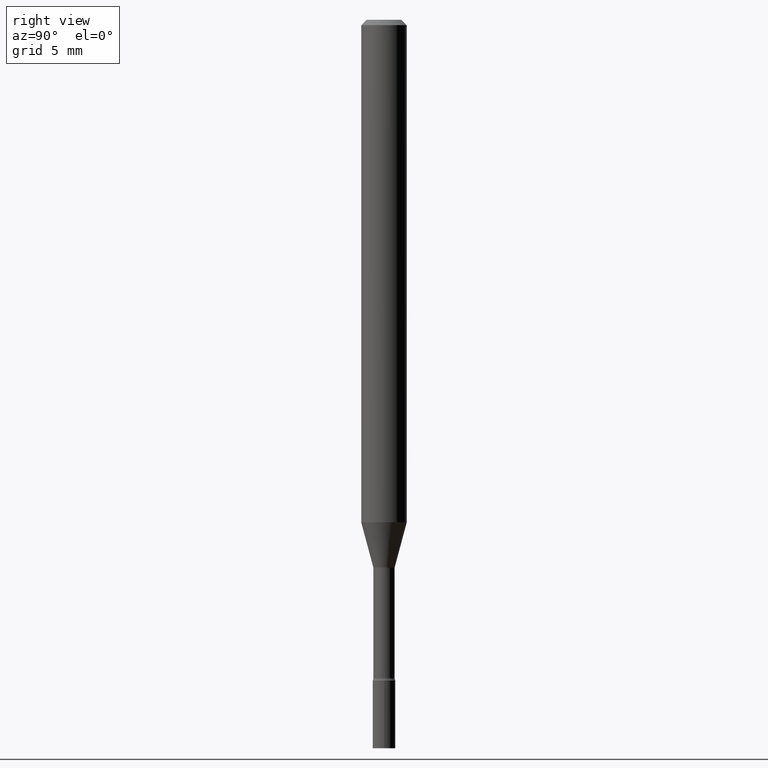
[diagram: clean part render]
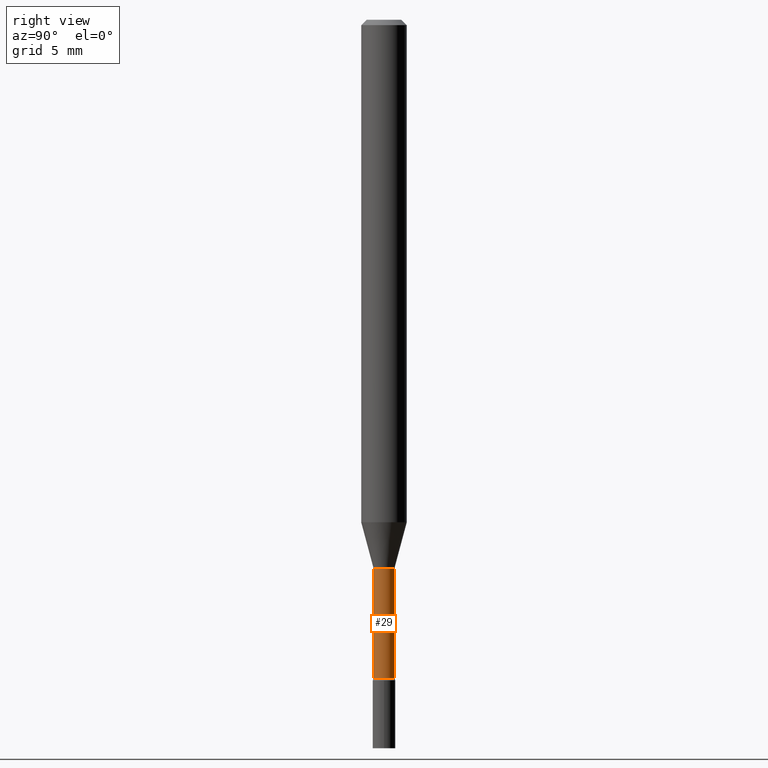
[diagram: same view with one face highlighted and labeled with its STEP entity id]
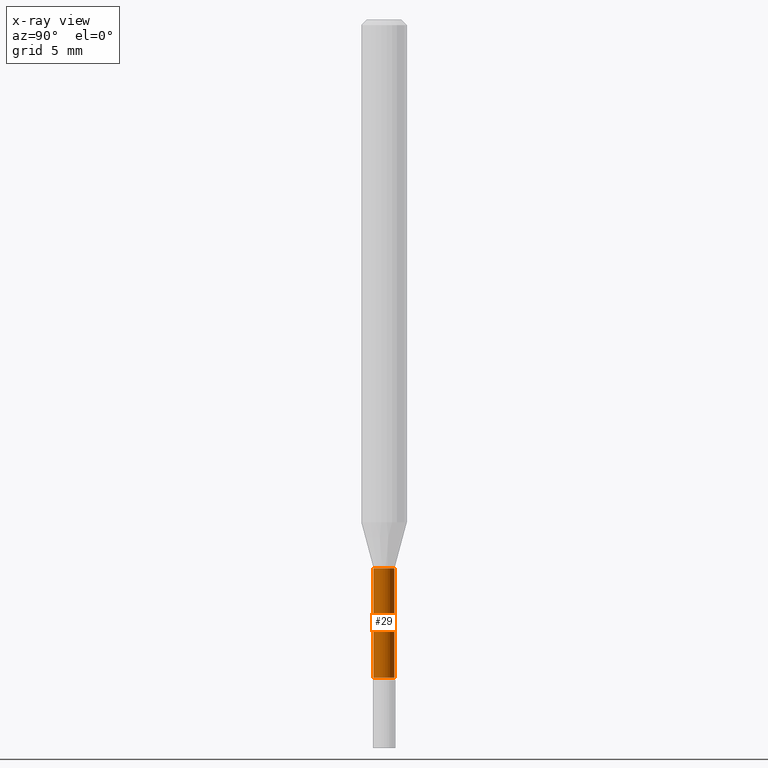
[diagram: x-ray of the same camera — body ghosted, the highlighted face saturated]
A machine part, right view. The second image highlights one B-rep face of the part: STEP entity #29.
The next image is the same camera in x-ray: the body ghosted, the highlighted face saturated — about 0% of this face is hidden behind the body in this view.
In plain terms, the highlighted cylindrical surface (edge-blend (fillet) strip) has radius 0.7404 mm, axis along (-0, 0, 1).
Its self-contained STEP definition (entity closure, byte-faithful):
#28 = VERTEX_POINT ( 'NONE', #440 ) ;
#29 = ADVANCED_FACE ( 'NONE', ( #34 ), #480, .T. ) ;
#34 = FACE_OUTER_BOUND ( 'NONE', #65, .T. ) ;
#43 = CARTESIAN_POINT ( 'NONE',  ( -2.035533620545106341E-16, -0.02915000000000633404, -1.806783525791634704 ) ) ;
#55 = DIRECTION ( 'NONE',  ( -6.982962677686265922E-15, -1.000000000000000000, 0.000000000000000000 ) ) ;
#65 = EDGE_LOOP ( 'NONE', ( #175, #304, #112, #149 ) ) ;
#98 = EDGE_CURVE ( 'NONE', #220, #28, #283, .T. ) ;
#109 = EDGE_CURVE ( 'NONE', #390, #137, #484, .T. ) ;
#110 = CIRCLE ( 'NONE', #209, 0.02914999999999999883 ) ;
#112 = ORIENTED_EDGE ( 'NONE', *, *, #302, .F. ) ;
#118 = DIRECTION ( 'NONE',  ( -2.445488781453985936E-29, 3.491452733121231775E-15, 1.000000000000000000 ) ) ;
#127 = CARTESIAN_POINT ( 'NONE',  ( 4.418468842839320606E-29, -6.308299279283618555E-15, -1.806783525791634704 ) ) ;
#128 = CIRCLE ( 'NONE', #397, 0.02915000000000002311 ) ;
#137 = VERTEX_POINT ( 'NONE', #409 ) ;
#149 = ORIENTED_EDGE ( 'NONE', *, *, #98, .F. ) ;
#175 = ORIENTED_EDGE ( 'NONE', *, *, #269, .T. ) ;
#201 = VECTOR ( 'NONE', #490, 39.37007874015748143 ) ;
#209 = AXIS2_PLACEMENT_3D ( 'NONE', #251, #501, #55 ) ;
#220 = VERTEX_POINT ( 'NONE', #43 ) ;
#227 = VECTOR ( 'NONE', #370, 39.37007874015748143 ) ;
#233 = DIRECTION ( 'NONE',  ( -6.982962677686266711E-15, -1.000000000000000000, 0.000000000000000000 ) ) ;
#251 = CARTESIAN_POINT ( 'NONE',  ( 3.682844447895300553E-29, -5.258039787702189962E-15, -1.505974787463811193 ) ) ;
#269 = EDGE_CURVE ( 'NONE', #220, #390, #128, .T. ) ;
#283 = LINE ( 'NONE', #405, #227 ) ;
#289 = CARTESIAN_POINT ( 'NONE',  ( 2.136957277798944871E-16, 0.02914999999999371566, -1.806783525791634704 ) ) ;
#302 = EDGE_CURVE ( 'NONE', #28, #137, #110, .T. ) ;
#304 = ORIENTED_EDGE ( 'NONE', *, *, #109, .T. ) ;
#318 = DIRECTION ( 'NONE',  ( -2.445488781453985936E-29, 3.491452733121231775E-15, 1.000000000000000000 ) ) ;
#370 = DIRECTION ( 'NONE',  ( -2.445488781453986216E-29, 3.491452733121232169E-15, 1.000000000000000000 ) ) ;
#390 = VERTEX_POINT ( 'NONE', #289 ) ;
#397 = AXIS2_PLACEMENT_3D ( 'NONE', #127, #118, #233 ) ;
#405 = CARTESIAN_POINT ( 'NONE',  ( -2.035533620545547363E-16, -0.02915000000000001271, 1.017758471704839448E-16 ) ) ;
#409 = CARTESIAN_POINT ( 'NONE',  ( 2.071232074741134460E-16, 0.02914999999999473568, -1.505974787463811193 ) ) ;
#439 = DIRECTION ( 'NONE',  ( -6.982962677686265922E-15, -1.000000000000000000, 3.491452733121231381E-15 ) ) ;
#440 = CARTESIAN_POINT ( 'NONE',  ( -2.035533620545178324E-16, -0.02915000000000525851, -1.505974787463811193 ) ) ;
#475 = CARTESIAN_POINT ( 'NONE',  ( 0.000000000000000000, 0.000000000000000000, 0.000000000000000000 ) ) ;
#480 = CYLINDRICAL_SURFACE ( 'NONE', #510, 0.02915000000000001271 ) ;
#482 = CARTESIAN_POINT ( 'NONE',  ( 2.071232074740692452E-16, 0.02915000000000001271, -1.017758471704839448E-16 ) ) ;
#484 = LINE ( 'NONE', #482, #201 ) ;
#490 = DIRECTION ( 'NONE',  ( -2.445488781453986216E-29, 3.491452733121232169E-15, 1.000000000000000000 ) ) ;
#501 = DIRECTION ( 'NONE',  ( -2.445488781453985936E-29, 3.491452733121231775E-15, 1.000000000000000000 ) ) ;
#510 = AXIS2_PLACEMENT_3D ( 'NONE', #475, #318, #439 ) ;